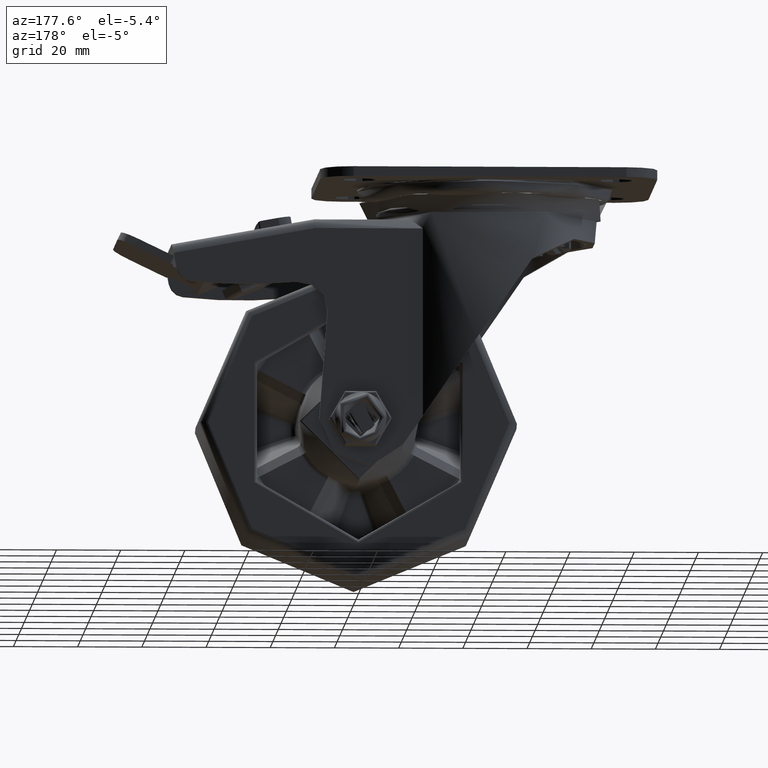
[diagram: clean part render]
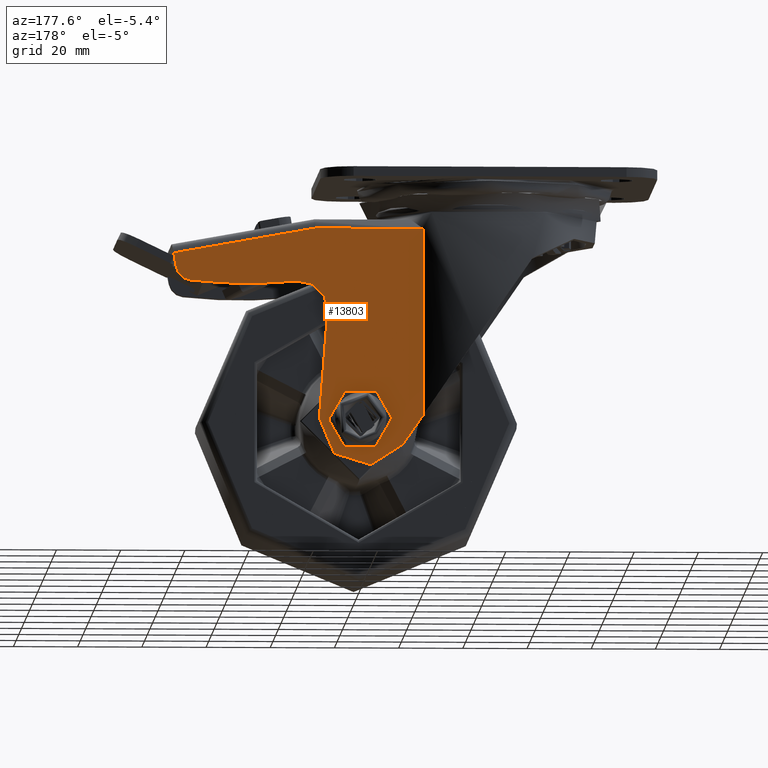
[diagram: same view with one face highlighted and labeled with its STEP entity id]
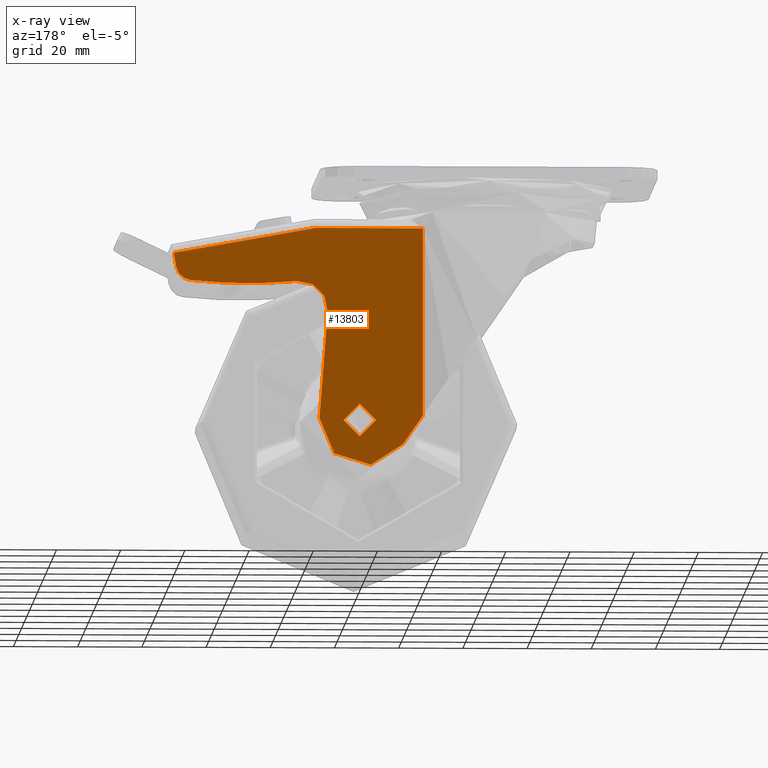
[diagram: x-ray of the same camera — body ghosted, the highlighted face saturated]
A machine part, auxiliary view. The second image highlights one B-rep face of the part: STEP entity #13803.
The next image is the same camera in x-ray: the body ghosted, the highlighted face saturated — about 0% of this face is hidden behind the body in this view.
In plain terms, the highlighted planar face has unit normal (0, 1, 0).
Its self-contained STEP definition (entity closure, byte-faithful):
#959=FACE_BOUND('',#4583,.T.);
#1137=PLANE('',#15101);
#1667=LINE('',#21387,#2610);
#1685=LINE('',#21702,#2628);
#1686=LINE('',#21707,#2629);
#1725=LINE('',#21873,#2668);
#1733=LINE('',#23736,#2676);
#1734=LINE('',#23739,#2677);
#2610=VECTOR('',#17180,1000.);
#2628=VECTOR('',#17252,1000.);
#2629=VECTOR('',#17257,999.999999999999);
#2668=VECTOR('',#17334,1000.);
#2676=VECTOR('',#17368,999.999999999999);
#2677=VECTOR('',#17373,1000.);
#3711=FACE_OUTER_BOUND('',#4582,.T.);
#4582=EDGE_LOOP('',(#10450,#10451,#10452,#10453,#10454,#10455,#10456,#10457,
#10458,#10459));
#4583=EDGE_LOOP('',(#10460));
#5429=CIRCLE('',#15022,5.1);
#5430=CIRCLE('',#15024,14.0981537713851);
#5449=CIRCLE('',#15070,5.);
#5458=CIRCLE('',#15096,162.802573480234);
#5459=CIRCLE('',#15098,8.81208253306783);
#6219=VERTEX_POINT('',#21333);
#6220=VERTEX_POINT('',#21337);
#6221=VERTEX_POINT('',#21338);
#6235=VERTEX_POINT('',#21373);
#6236=VERTEX_POINT('',#21386);
#6271=VERTEX_POINT('',#21700);
#6273=VERTEX_POINT('',#21705);
#6276=VERTEX_POINT('',#21713);
#6277=VERTEX_POINT('',#21715);
#6316=VERTEX_POINT('',#23728);
#6317=VERTEX_POINT('',#23732);
#7675=EDGE_CURVE('',#6219,#6219,#5429,.T.);
#7676=EDGE_CURVE('',#6220,#6221,#5430,.T.);
#7694=EDGE_CURVE('',#6235,#6236,#1667,.T.);
#7739=EDGE_CURVE('',#6271,#6235,#1685,.T.);
#7741=EDGE_CURVE('',#6273,#6271,#1686,.T.);
#7745=EDGE_CURVE('',#6276,#6277,#5449,.T.);
#7799=EDGE_CURVE('',#6277,#6273,#1725,.T.);
#7809=EDGE_CURVE('',#6316,#6276,#5458,.T.);
#7811=EDGE_CURVE('',#6317,#6316,#5459,.T.);
#7812=EDGE_CURVE('',#6220,#6317,#1733,.T.);
#7813=EDGE_CURVE('',#6221,#6236,#1734,.T.);
#10450=ORIENTED_EDGE('',*,*,#7745,.F.);
#10451=ORIENTED_EDGE('',*,*,#7809,.F.);
#10452=ORIENTED_EDGE('',*,*,#7811,.F.);
#10453=ORIENTED_EDGE('',*,*,#7812,.F.);
#10454=ORIENTED_EDGE('',*,*,#7676,.T.);
#10455=ORIENTED_EDGE('',*,*,#7813,.T.);
#10456=ORIENTED_EDGE('',*,*,#7694,.F.);
#10457=ORIENTED_EDGE('',*,*,#7739,.F.);
#10458=ORIENTED_EDGE('',*,*,#7741,.F.);
#10459=ORIENTED_EDGE('',*,*,#7799,.F.);
#10460=ORIENTED_EDGE('',*,*,#7675,.T.);
#13803=ADVANCED_FACE('',(#3711,#959),#1137,.T.);
#15022=AXIS2_PLACEMENT_3D('',#21335,#17140,#17141);
#15024=AXIS2_PLACEMENT_3D('',#21339,#17144,#17145);
#15070=AXIS2_PLACEMENT_3D('',#21716,#17264,#17265);
#15096=AXIS2_PLACEMENT_3D('',#23730,#17359,#17360);
#15098=AXIS2_PLACEMENT_3D('',#23734,#17364,#17365);
#15101=AXIS2_PLACEMENT_3D('',#23738,#17371,#17372);
#17140=DIRECTION('center_axis',(0.,-1.,0.));
#17141=DIRECTION('ref_axis',(-1.,0.,0.));
#17144=DIRECTION('center_axis',(0.,1.,0.));
#17145=DIRECTION('ref_axis',(-1.,0.,0.));
#17180=DIRECTION('',(2.8546082516074E-16,0.,-1.));
#17252=DIRECTION('',(-1.,0.,-6.19544098563145E-16));
#17257=DIRECTION('',(-0.984221862475645,0.,0.176938761793374));
#17264=DIRECTION('center_axis',(0.,-1.,0.));
#17265=DIRECTION('ref_axis',(0.681207828796977,0.,-0.73209008597693));
#17334=DIRECTION('',(0.178885438199981,0.,0.983869910099908));
#17359=DIRECTION('center_axis',(0.,-1.,0.));
#17360=DIRECTION('ref_axis',(0.130526192220052,0.,-0.99144486137381));
#17364=DIRECTION('center_axis',(0.,1.,0.));
#17365=DIRECTION('ref_axis',(0.0959341234096453,0.,0.995387685259177));
#17368=DIRECTION('',(-0.0764423402744016,0.,0.997074003579159));
#17371=DIRECTION('center_axis',(0.,1.,0.));
#17372=DIRECTION('ref_axis',(0.,0.,1.));
#17373=DIRECTION('',(-0.569117402325409,0.,0.822256275360899));
#21333=CARTESIAN_POINT('',(45.1,28.5,-78.));
#21335=CARTESIAN_POINT('Origin',(40.,28.5,-78.));
#21337=CARTESIAN_POINT('',(52.5569849404044,28.5,-77.4389340052757));
#21338=CARTESIAN_POINT('',(26.5323310583003,28.5,-85.4999999999998));
#21339=CARTESIAN_POINT('Origin',(38.47,28.5,-78.));
#21373=CARTESIAN_POINT('',(20.31624965391,28.5,-18.));
#21386=CARTESIAN_POINT('',(20.3162496539101,28.5,-76.5190552563851));
#21387=CARTESIAN_POINT('',(20.3162496539101,28.5,-55.));
#21700=CARTESIAN_POINT('',(53.7324813845574,28.5,-18.));
#21702=CARTESIAN_POINT('',(21.,28.5,-18.));
#21705=CARTESIAN_POINT('',(97.9633426353174,28.5,-25.9516155057545));
#21707=CARTESIAN_POINT('',(37.1333790185211,28.5,-15.0158917094766));
#21713=CARTESIAN_POINT('',(92.7790277643619,28.5,-34.4463683844271));
#21715=CARTESIAN_POINT('',(97.1600250213551,28.5,-30.369862382547));
#21716=CARTESIAN_POINT('Origin',(92.2406754708556,28.5,-29.4754351915471));
#21873=CARTESIAN_POINT('',(96.5,28.5,-34.));
#23728=CARTESIAN_POINT('',(59.6316778243392,28.5,-34.6419018753171));
#23730=CARTESIAN_POINT('Origin',(75.2499999999999,28.5,127.40977489541));
#23732=CARTESIAN_POINT('',(50.,28.5,-44.0869565217391));
#23734=CARTESIAN_POINT('Origin',(58.7862984111159,28.5,-43.4133403102203));
#23736=CARTESIAN_POINT('',(53.9033333333333,28.5,-95.));
#23738=CARTESIAN_POINT('Origin',(0.,28.5,0.));
#23739=CARTESIAN_POINT('',(-7.80586039497296,28.5,-35.8884553667997));